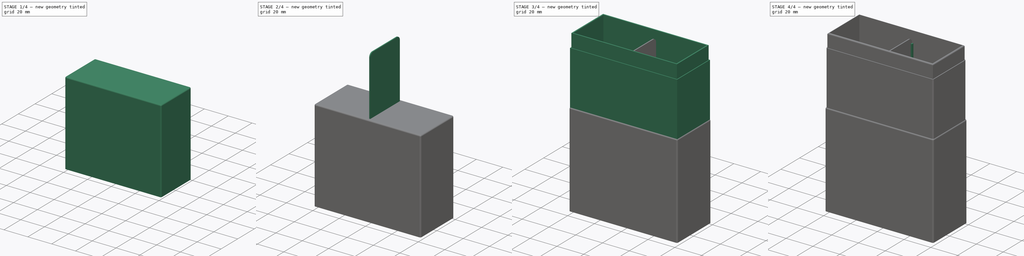
[diagram: build sequence overview — one tinted view per stage of 4, left to right]
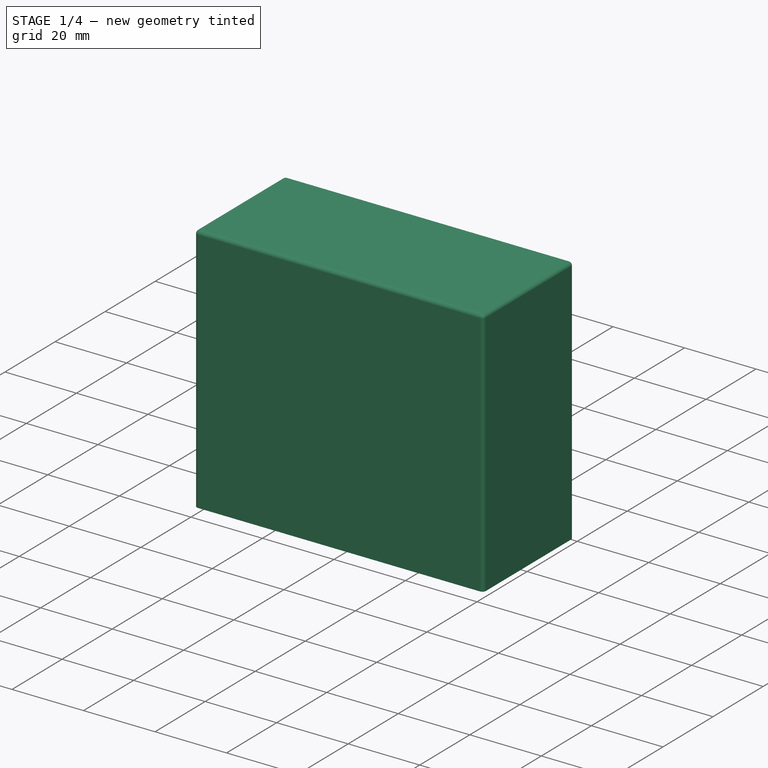
[diagram: stage 1 of 4 — iso view after this stage's code; geometry added in this stage tinted green]
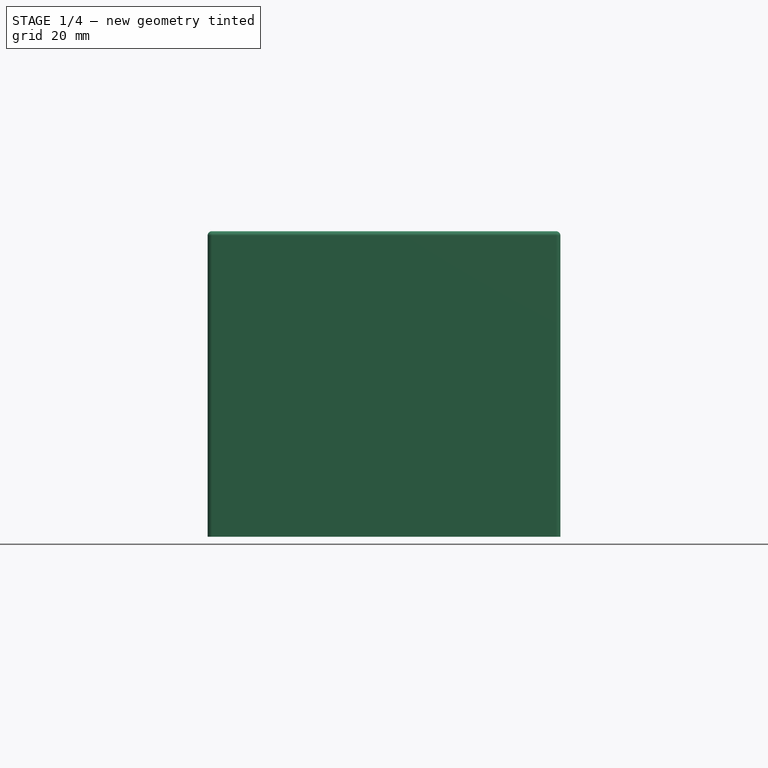
[diagram: stage 1 of 4 — front view after this stage's code; geometry added in this stage tinted green]
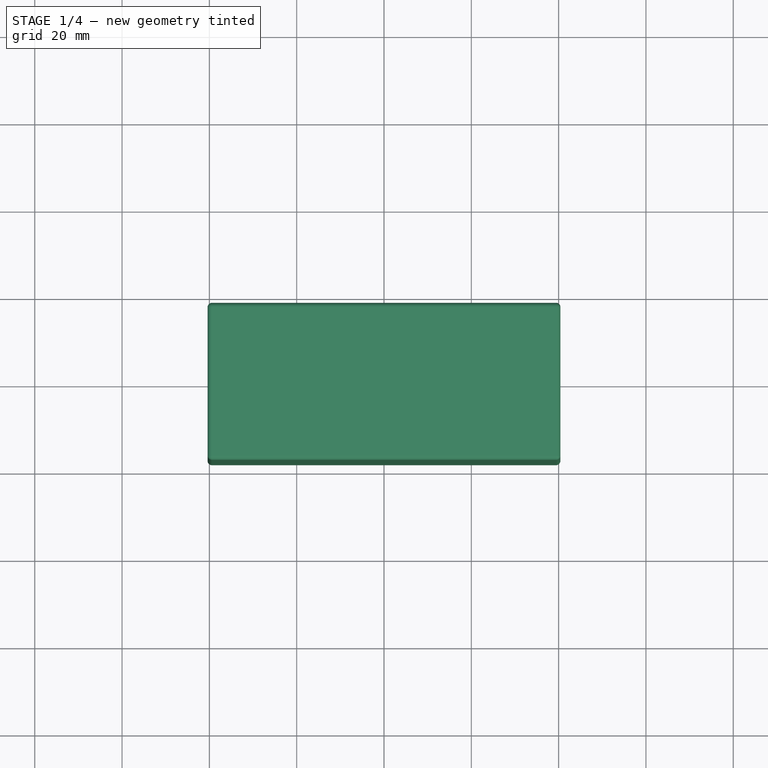
[diagram: stage 1 of 4 — top view after this stage's code; geometry added in this stage tinted green]
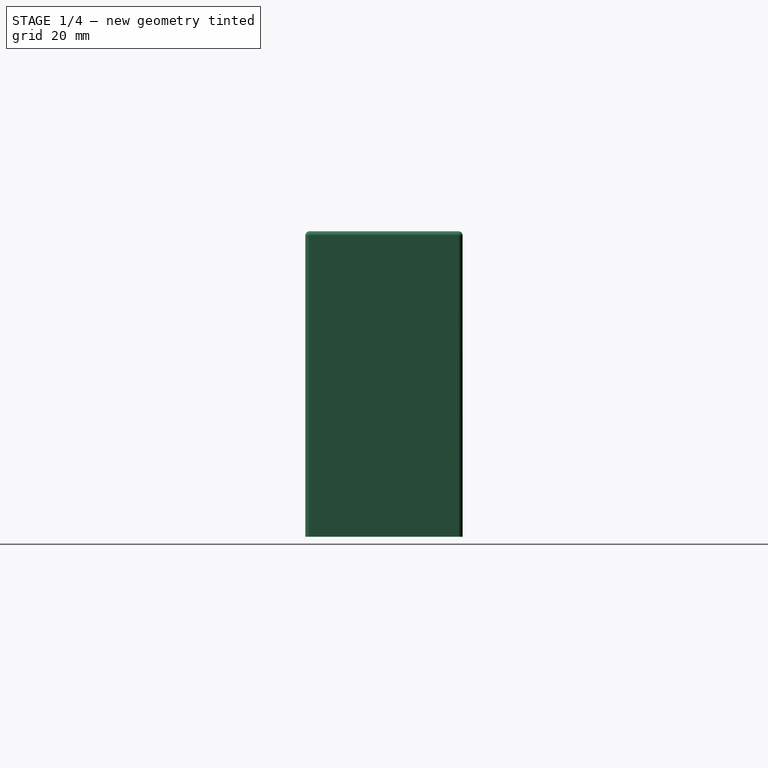
[diagram: stage 1 of 4 — right view after this stage's code; geometry added in this stage tinted green]
FCSTD DOCUMENT  (FreeCAD 0.20R29177 +426 (Git))
Label: 壁挂盒-笔筒
License: All rights reserved
LicenseURL: http://en.wikipedia.org/wiki/All_rights_reserved
objects: Sketcher::SketchObject×5, PartDesign::Fillet×5, PartDesign::Pad×4, PartDesign::Body×3, App::Part×3, PartDesign::Thickness×2, PartDesign::Pocket×1
note: 32 computed .brp shape members not serialized (recipe doc carries the construction recipe); baked Part::Feature solids carry a one-line shape summary decoded from their .brp

FEATURE [Sketcher::SketchObject] Sketch002
  FullyConstrained = true
  MapMode = 5
  Support = -> [XY_Plane003]
  sketch-geometry (8):
    g0: LineSegment StartX=-40.4 StartY=18 StartZ=0 EndX=40.4 EndY=18 EndZ=0
    g1: LineSegment StartX=40.4 StartY=18 StartZ=0 EndX=40.4 EndY=-18 EndZ=0
    g2: LineSegment StartX=40.4 StartY=-18 StartZ=0 EndX=-40.4 EndY=-18 EndZ=0
    g3: LineSegment StartX=-40.4 StartY=-18 StartZ=0 EndX=-40.4 EndY=18 EndZ=0
    g4: LineSegment StartX=-39.6 StartY=17.1 StartZ=0 EndX=39.6 EndY=17.1 EndZ=0
    g5: LineSegment StartX=39.6 StartY=17.1 StartZ=0 EndX=39.6 EndY=-17.1 EndZ=0
    g6: LineSegment StartX=39.6 StartY=-17.1 StartZ=0 EndX=-39.6 EndY=-17.1 EndZ=0
    g7: LineSegment StartX=-39.6 StartY=-17.1 StartZ=0 EndX=-39.6 EndY=17.1 EndZ=0
  constraints (23):
    c: Coincident(g0,g1)
    c: Coincident(g1,g2)
    c: Coincident(g2,g3)
    c: Coincident(g3,g0)
    c: Horizontal(g0)
    c: Horizontal(g2)
    c: Vertical(g1)
    c: Vertical(g3)
    c: Symmetric(g2,g0,g-1)
    c: DistanceX(g2,g2) = 80.8
    c: DistanceY(g3,g3) = 36
    c: Coincident(g4,g5)
    c: Coincident(g5,g6)
    c: Coincident(g6,g7)
    c: Coincident(g7,g4)
    c: Horizontal(g4)
    c: Horizontal(g6)
    c: Vertical(g5)
    c: Vertical(g7)
    c: Distance(g6,g2) = 0.9
    c: Distance(g4,g3) = 0.8
    c: Distance(g4,g1) = 0.8
    c: Distance(g4,g0) = 0.9
FEATURE [PartDesign::Pad] Pad001
  Direction = (0,0,1)
  Length = 70
  Length2 = 10
  Profile = -> Sketch002
  ReferenceAxis = -> Sketch002 [N_Axis]
  Type = 0
FEATURE [PartDesign::Thickness] Thickness001
  Base = -> Pad001 [Face5]
  BaseFeature = -> Pad001
  Intersection = false
  Join = 1
  Mode = 0
  Reversed = true
  SupportTransform = false
  Value = 0.8
FEATURE [PartDesign::Body] Body002
  Group = -> [Sketch004,Pad003,Fillet004]
  Origin = -> Origin005
  Tip = -> Fillet004
FEATURE [App::Part] Part002  label="隔板"
  Group = -> [Body002]
  Origin = -> Origin004
  Placement = pos=(123,0,0) rot=(0,0,1;0rad)
FEATURE [PartDesign::Fillet] Fillet
  Base = -> Thickness001 [Edge1,Edge8,Edge2,Edge4,Edge5,Edge7,Edge10,Edge12]
  BaseFeature = -> Thickness001
  Radius = 1
  SupportTransform = false
  UseAllEdges = false
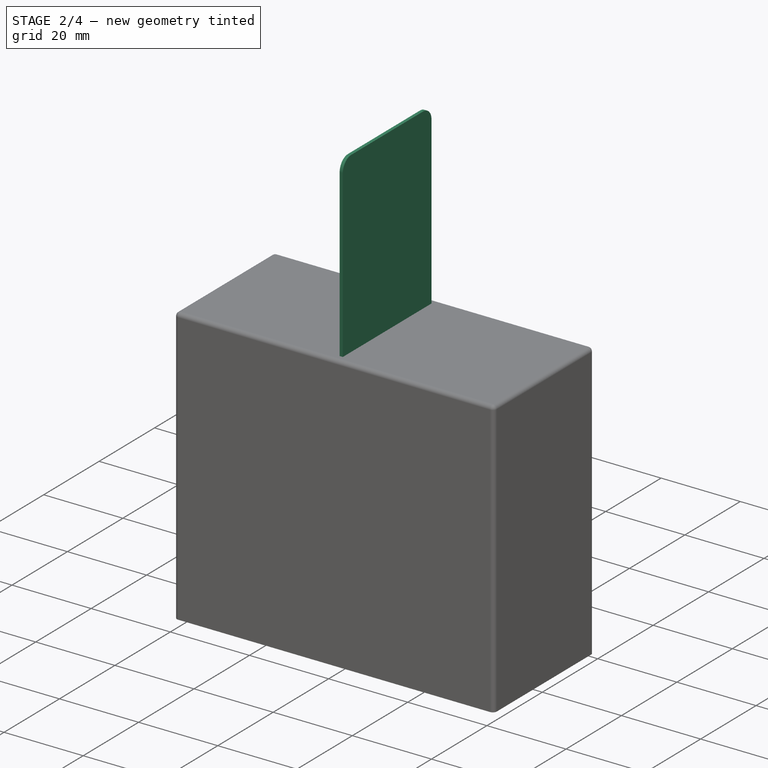
[diagram: stage 2 of 4 — iso view after this stage's code; geometry added in this stage tinted green]
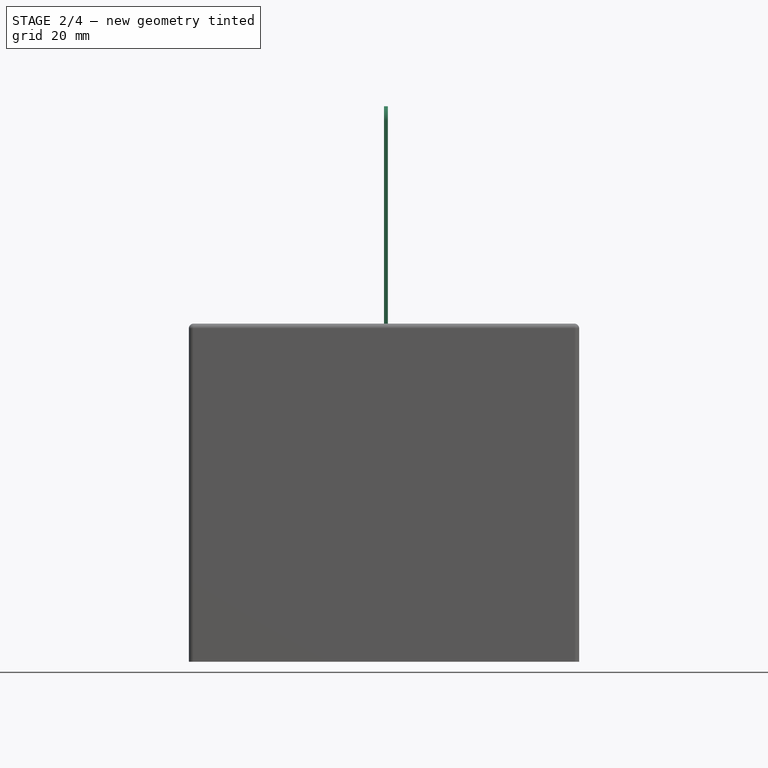
[diagram: stage 2 of 4 — front view after this stage's code; geometry added in this stage tinted green]
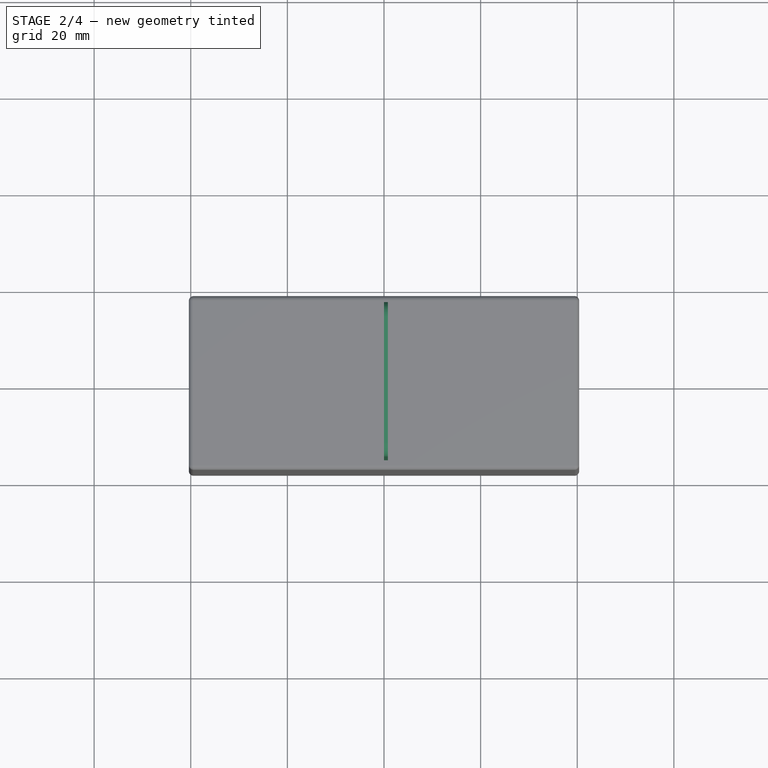
[diagram: stage 2 of 4 — top view after this stage's code; geometry added in this stage tinted green]
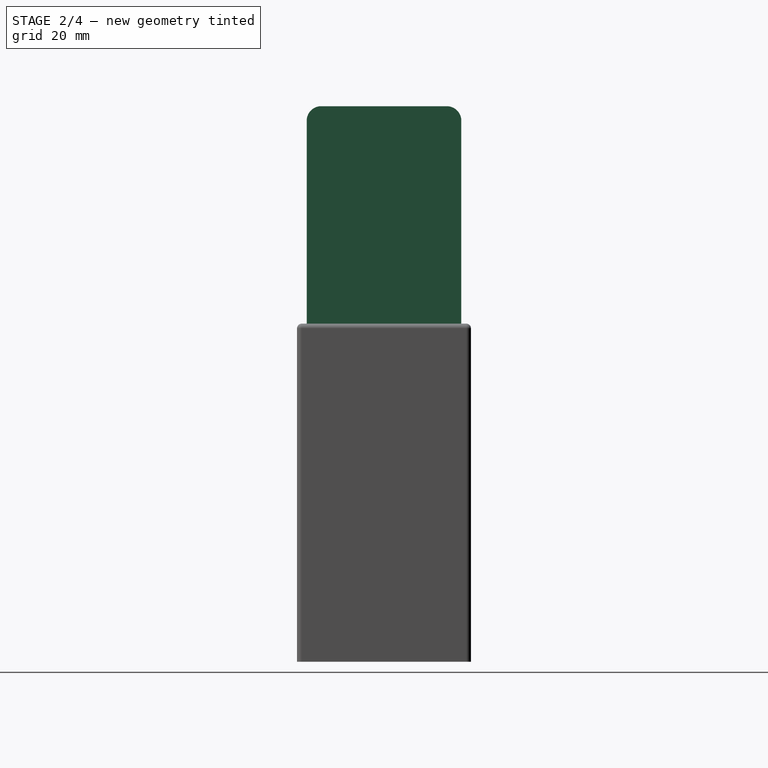
[diagram: stage 2 of 4 — right view after this stage's code; geometry added in this stage tinted green]
FEATURE [PartDesign::Body] Body
  Group = -> [Sketch,Pad,Thickness,Sketch001,Pocket,Fillet001,Sketch003,Pad002,Fillet002]
  Origin = -> Origin
  Tip = -> Fillet002
FEATURE [App::Part] Part  label="盒体"
  Group = -> [Body]
  Origin = -> Origin001
FEATURE [Sketcher::SketchObject] Sketch004
  FullyConstrained = true
  MapMode = 5
  Placement = pos=(0,0,0) rot=(0.57735,0.57735,0.57735;2.0944rad)
  Support = -> [YZ_Plane005]
  sketch-geometry (4):
    g0: LineSegment StartX=-16 StartY=115 StartZ=0 EndX=16 EndY=115 EndZ=0
    g1: LineSegment StartX=16 StartY=115 StartZ=0 EndX=16 EndY=0 EndZ=0
    g2: LineSegment StartX=16 StartY=0 StartZ=0 EndX=-16 EndY=0 EndZ=0
    g3: LineSegment StartX=-16 StartY=0 StartZ=0 EndX=-16 EndY=115 EndZ=0
  constraints (12):
    c: Coincident(g0,g1)
    c: Coincident(g1,g2)
    c: Coincident(g2,g3)
    c: Coincident(g3,g0)
    c: Horizontal(g0)
    c: Horizontal(g2)
    c: Vertical(g1)
    c: Vertical(g3)
    c: DistanceY(g1,g1) = 115
    c: PointOnObject(g1,g-1)
    c: DistanceX(g-2,g1) = 16
    c: DistanceX(g-2,g2) = -16
FEATURE [PartDesign::Pad] Pad003
  Direction = (1,-2e-16,3e-16)
  Length = 0.8
  Length2 = 10
  Placement = pos=(0,0,0) rot=(0.57735,0.57735,0.57735;2.0944rad)
  Profile = -> Sketch004
  ReferenceAxis = -> Sketch004 [N_Axis]
  Type = 0
FEATURE [PartDesign::Fillet] Fillet004
  Base = -> Pad003 [Edge2,Edge1,Edge5,Edge8]
  BaseFeature = -> Pad003
  Placement = pos=(0,0,0) rot=(0.57735,0.57735,0.57735;2.0944rad)
  Radius = 3
  SupportTransform = false
  UseAllEdges = false
FEATURE [PartDesign::Fillet] Fillet005
  Base = -> Fillet [Edge12,Edge13,Edge15,Edge14]
  BaseFeature = -> Fillet
  Radius = 0.5
  SupportTransform = false
  UseAllEdges = false
FEATURE [PartDesign::Body] Body001
  Group = -> [Sketch002,Pad001,Thickness001,Fillet,Fillet005]
  Origin = -> Origin003
  Placement = pos=(0,0,127) rot=(0,0,1;0rad)
  Tip = -> Fillet005
FEATURE [App::Part] Part001  label="盒盖"
  Group = -> [Body001]
  Origin = -> Origin002
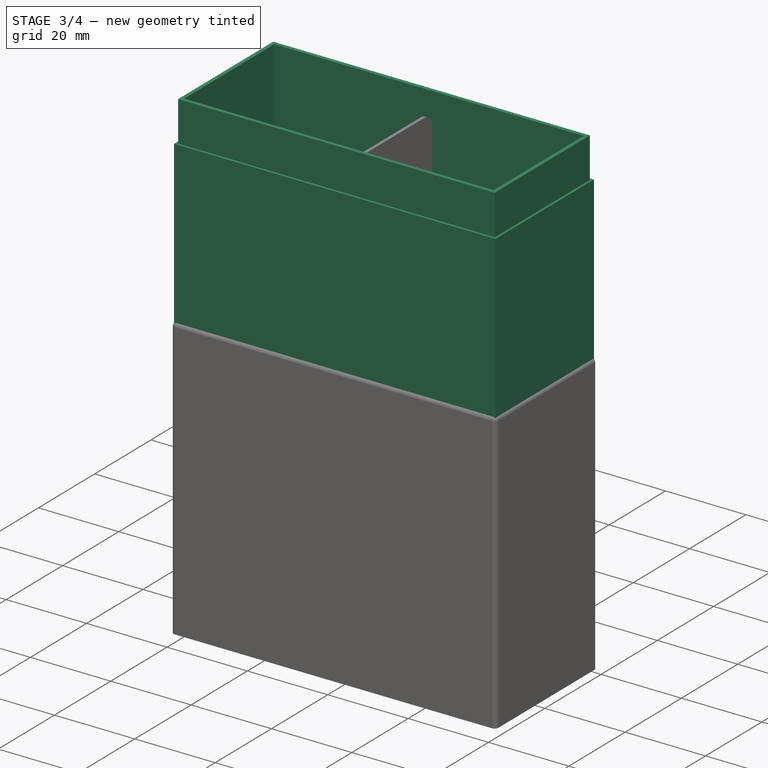
[diagram: stage 3 of 4 — iso view after this stage's code; geometry added in this stage tinted green]
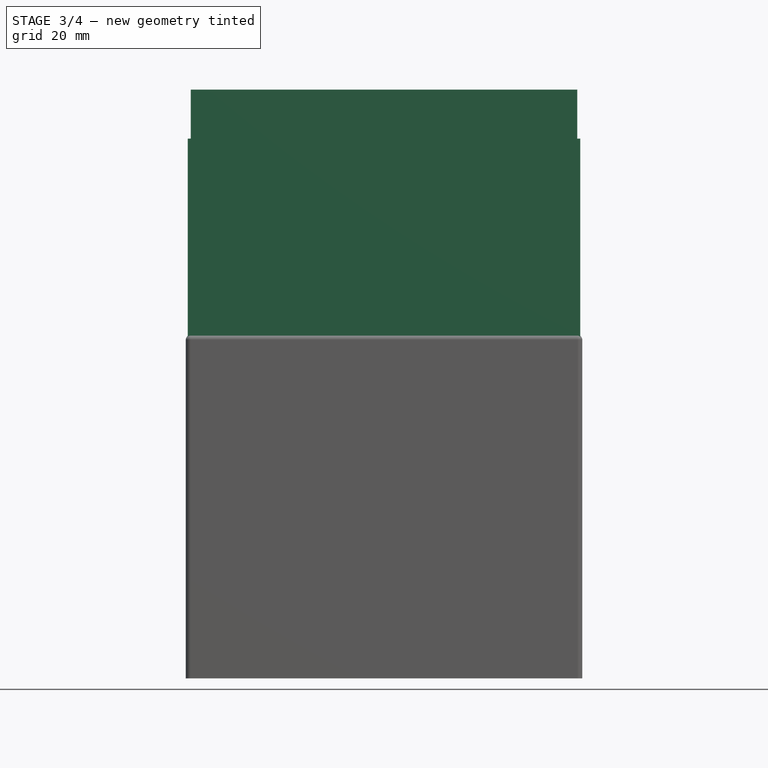
[diagram: stage 3 of 4 — front view after this stage's code; geometry added in this stage tinted green]
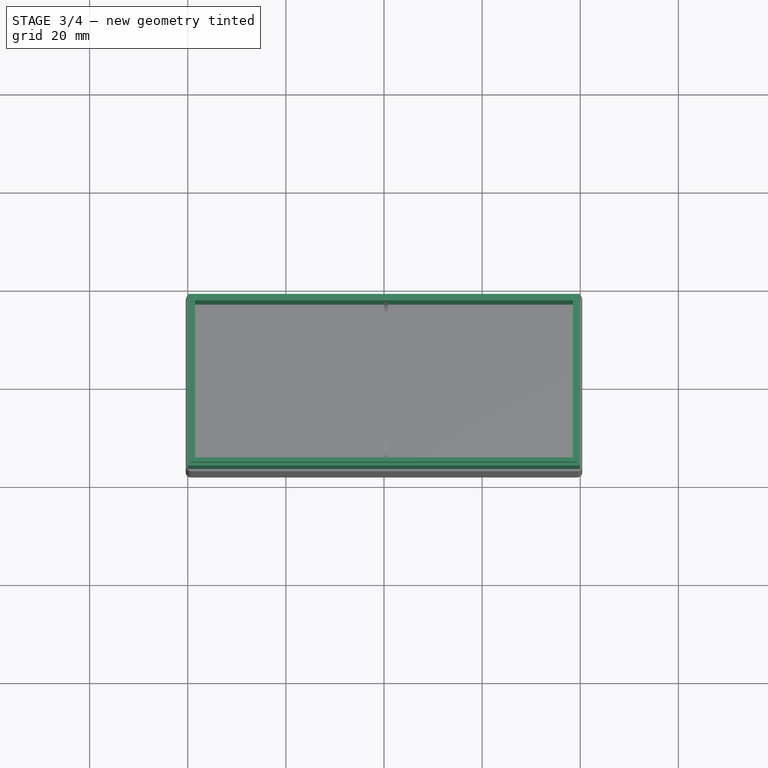
[diagram: stage 3 of 4 — top view after this stage's code; geometry added in this stage tinted green]
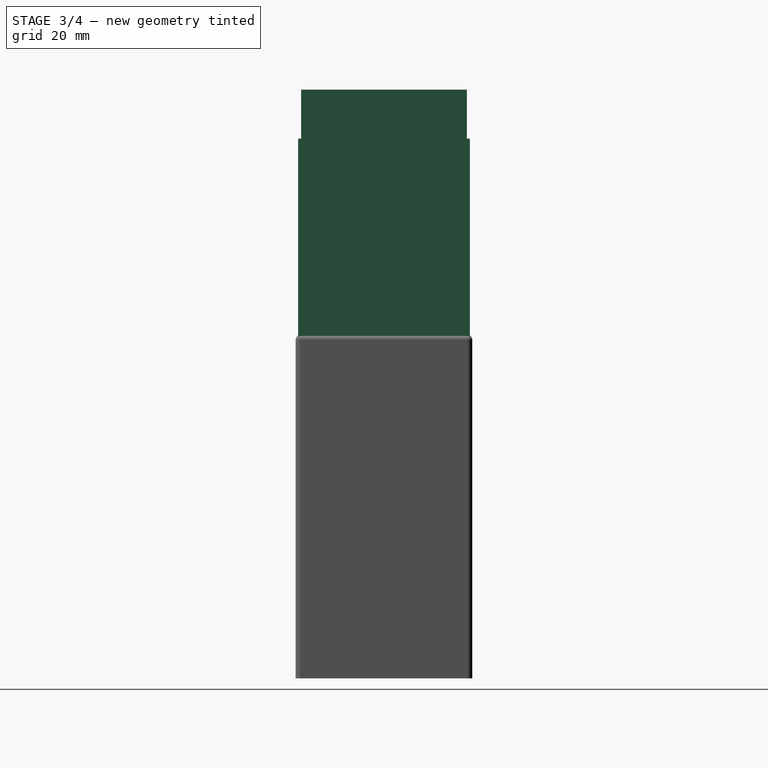
[diagram: stage 3 of 4 — right view after this stage's code; geometry added in this stage tinted green]
FEATURE [Sketcher::SketchObject] Sketch
  FullyConstrained = true
  MapMode = 5
  Support = -> [XY_Plane]
  sketch-geometry (4):
    g0: LineSegment StartX=-40 StartY=17.5 StartZ=0 EndX=40 EndY=17.5 EndZ=0
    g1: LineSegment StartX=40 StartY=17.5 StartZ=0 EndX=40 EndY=-17.5 EndZ=0
    g2: LineSegment StartX=40 StartY=-17.5 StartZ=0 EndX=-40 EndY=-17.5 EndZ=0
    g3: LineSegment StartX=-40 StartY=-17.5 StartZ=0 EndX=-40 EndY=17.5 EndZ=0
  constraints (11):
    c: Coincident(g0,g1)
    c: Coincident(g1,g2)
    c: Coincident(g2,g3)
    c: Coincident(g3,g0)
    c: Horizontal(g0)
    c: Horizontal(g2)
    c: Vertical(g1)
    c: Vertical(g3)
    c: Symmetric(g2,g0,g-1)
    c: DistanceX(g2,g2) = 80
    c: DistanceY(g3,g3) = 35
FEATURE [PartDesign::Pad] Pad
  Direction = (0,0,1)
  Length = 120
  Length2 = 10
  Profile = -> Sketch
  ReferenceAxis = -> Sketch [N_Axis]
  Type = 0
FEATURE [PartDesign::Thickness] Thickness
  Base = -> Pad [Face6]
  BaseFeature = -> Pad
  Intersection = false
  Join = 0
  Mode = 0
  Reversed = true
  SupportTransform = false
  Value = 1.5
FEATURE [Sketcher::SketchObject] Sketch001
  ExternalGeometry = -> [Thickness]
  FullyConstrained = true
  MapMode = 5
  Placement = pos=(0,0,120) rot=(0,0,1;0rad)
  Support = -> [Thickness]
  sketch-geometry (8):
    g0: LineSegment StartX=-39.4 StartY=16.9 StartZ=0 EndX=39.4 EndY=16.9 EndZ=0
    g1: LineSegment StartX=39.4 StartY=16.9 StartZ=0 EndX=39.4 EndY=-16.9 EndZ=0
    g2: LineSegment StartX=39.4 StartY=-16.9 StartZ=0 EndX=-39.4 EndY=-16.9 EndZ=0
    g3: LineSegment StartX=-39.4 StartY=-16.9 StartZ=0 EndX=-39.4 EndY=16.9 EndZ=0
    g4: LineSegment StartX=-40 StartY=17.5 StartZ=0 EndX=40 EndY=17.5 EndZ=0
    g5: LineSegment StartX=40 StartY=17.5 StartZ=0 EndX=40 EndY=-17.5 EndZ=0
    g6: LineSegment StartX=40 StartY=-17.5 StartZ=0 EndX=-40 EndY=-17.5 EndZ=0
    g7: LineSegment StartX=-40 StartY=-17.5 StartZ=0 EndX=-40 EndY=17.5 EndZ=0
  constraints (21):
    c: Coincident(g0,g1)
    c: Coincident(g1,g2)
    c: Coincident(g2,g3)
    c: Coincident(g3,g0)
    c: Horizontal(g0)
    c: Horizontal(g2)
    c: Vertical(g1)
    c: Vertical(g3)
    c: Symmetric(g0,g2,g-1)
    c: Distance(g2,g-6) = 0.6
    c: Distance(g2,g-4) = 0.6
    c: Coincident(g4,g5)
    c: Coincident(g5,g6)
    c: Coincident(g6,g7)
    c: Coincident(g7,g4)
    c: Horizontal(g4)
    c: Horizontal(g6)
    c: Vertical(g5)
    c: Vertical(g7)
    c: Coincident(g4,g-4)
    c: Coincident(g5,g-6)
FEATURE [PartDesign::Pocket] Pocket
  BaseFeature = -> Thickness
  Direction = (0,0,-1)
  Length = 10
  Length2 = 5
  Profile = -> Sketch001
  ReferenceAxis = -> Sketch001 [N_Axis]
  Type = 0
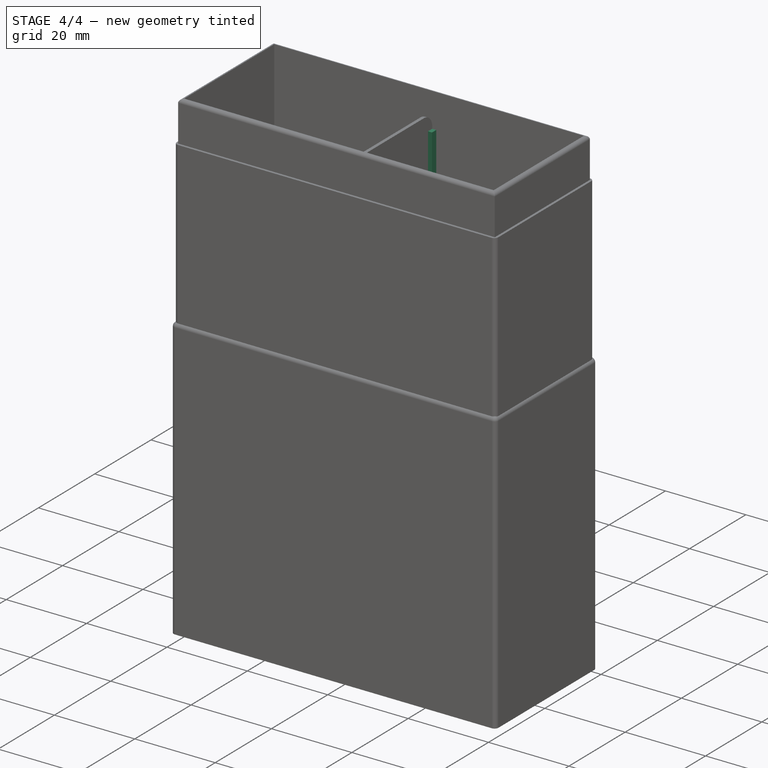
[diagram: stage 4 of 4 — iso view after this stage's code; geometry added in this stage tinted green]
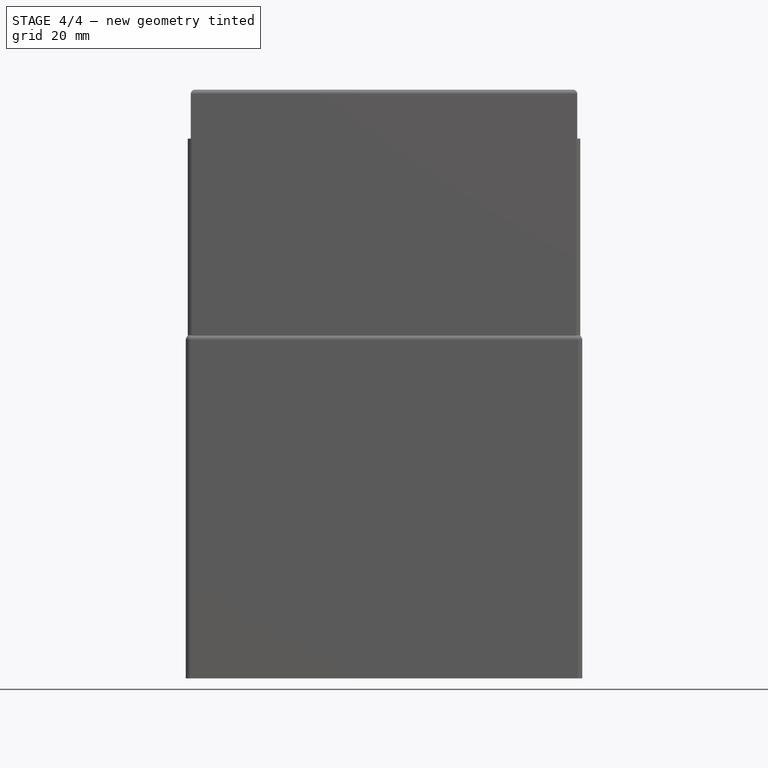
[diagram: stage 4 of 4 — front view after this stage's code; geometry added in this stage tinted green]
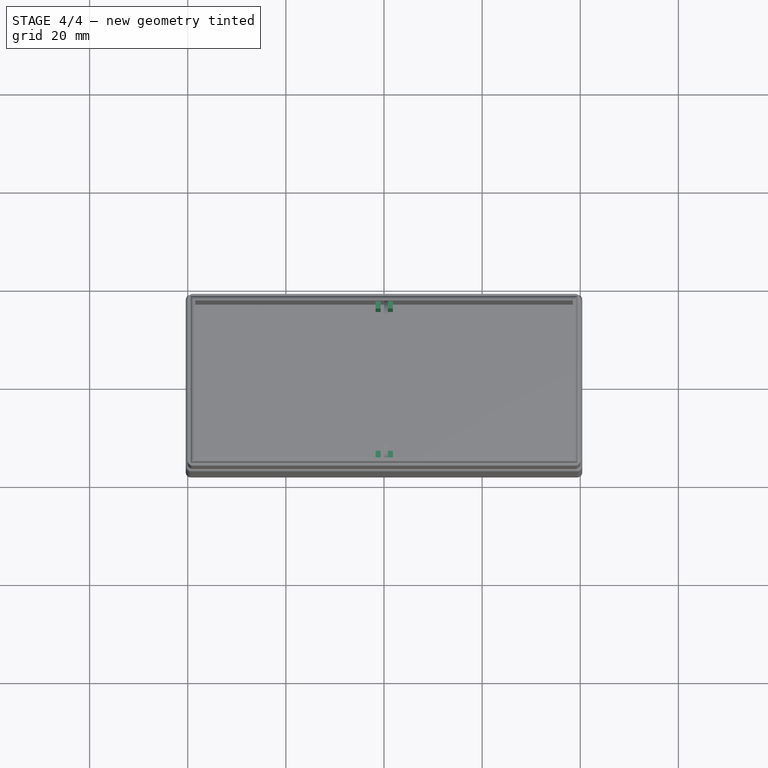
[diagram: stage 4 of 4 — top view after this stage's code; geometry added in this stage tinted green]
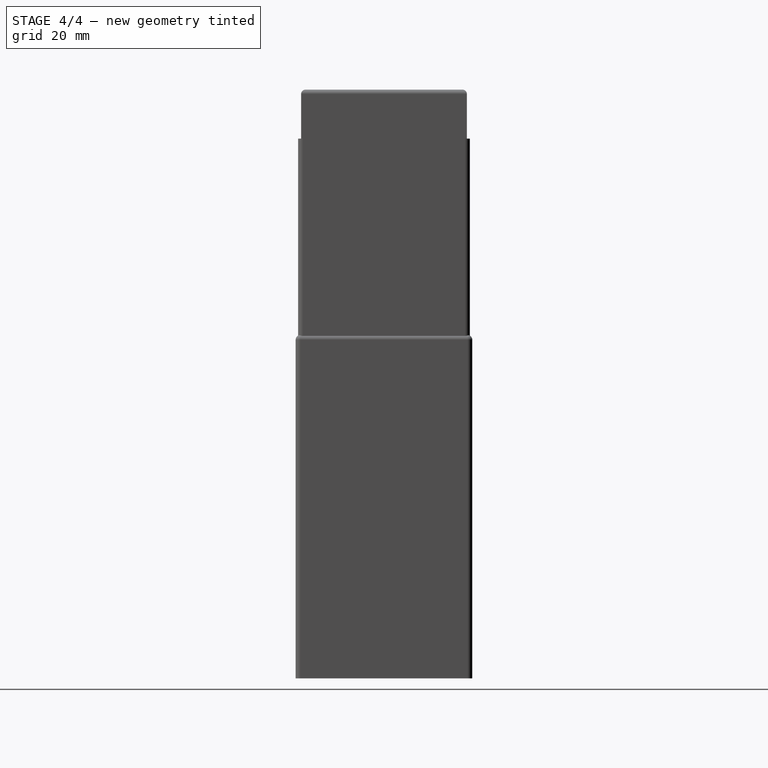
[diagram: stage 4 of 4 — right view after this stage's code; geometry added in this stage tinted green]
FEATURE [PartDesign::Fillet] Fillet001
  Base = -> Pocket [Edge8,Edge2,Edge16,Edge4,Edge7,Edge6,Edge1,Edge5]
  BaseFeature = -> Pocket
  Radius = 1
  SupportTransform = false
  UseAllEdges = false
FEATURE [Sketcher::SketchObject] Sketch003
  ExternalGeometry = -> [Fillet001]
  FullyConstrained = true
  MapMode = 5
  Placement = pos=(0,0,1.5) rot=(0,0,1;0rad)
  Support = -> [Fillet001]
  sketch-geometry (16):
    g0: LineSegment StartX=0.8 StartY=16 StartZ=0 EndX=1.8 EndY=16 EndZ=0
    g1: LineSegment StartX=1.8 StartY=16 StartZ=0 EndX=1.8 EndY=14.5 EndZ=0
    g2: LineSegment StartX=1.8 StartY=14.5 StartZ=0 EndX=0.8 EndY=14.5 EndZ=0
    g3: LineSegment StartX=0.8 StartY=14.5 StartZ=0 EndX=0.8 EndY=16 EndZ=0
    g4: LineSegment StartX=-1.7 StartY=-14.5 StartZ=0 EndX=-0.7 EndY=-14.5 EndZ=0
    g5: LineSegment StartX=-0.7 StartY=-14.5 StartZ=0 EndX=-0.7 EndY=-16 EndZ=0
    g6: LineSegment StartX=-0.7 StartY=-16 StartZ=0 EndX=-1.7 EndY=-16 EndZ=0
    g7: LineSegment StartX=-1.7 StartY=-16 StartZ=0 EndX=-1.7 EndY=-14.5 EndZ=0
    g8: LineSegment StartX=0.8 StartY=-14.5 StartZ=0 EndX=1.8 EndY=-14.5 EndZ=0
    g9: LineSegment StartX=1.8 StartY=-14.5 StartZ=0 EndX=1.8 EndY=-16 EndZ=0
    g10: LineSegment StartX=1.8 StartY=-16 StartZ=0 EndX=0.8 EndY=-16 EndZ=0
    g11: LineSegment StartX=0.8 StartY=-16 StartZ=0 EndX=0.8 EndY=-14.5 EndZ=0
    g12: LineSegment StartX=-1.7 StartY=16 StartZ=0 EndX=-0.7 EndY=16 EndZ=0
    g13: LineSegment StartX=-0.7 StartY=16 StartZ=0 EndX=-0.7 EndY=14.5 EndZ=0
    g14: LineSegment StartX=-0.7 StartY=14.5 StartZ=0 EndX=-1.7 EndY=14.5 EndZ=0
    g15: LineSegment StartX=-1.7 StartY=14.5 StartZ=0 EndX=-1.7 EndY=16 EndZ=0
  constraints (48):
    c: Coincident(g0,g1)
    c: Coincident(g1,g2)
    c: Coincident(g2,g3)
    c: Coincident(g3,g0)
    c: Horizontal(g0)
    c: Horizontal(g2)
    c: Vertical(g1)
    c: Vertical(g3)
    c: Coincident(g4,g5)
    c: Coincident(g5,g6)
    c: Coincident(g6,g7)
    c: Coincident(g7,g4)
    c: Horizontal(g4)
    c: Horizontal(g6)
    c: Vertical(g5)
    c: Vertical(g7)
    c: Coincident(g8,g9)
    c: Coincident(g9,g10)
    c: Coincident(g10,g11)
    c: Coincident(g11,g8)
    c: Horizontal(g8)
    c: Horizontal(g10)
    c: Vertical(g9)
    c: Vertical(g11)
    c: Coincident(g12,g13)
    c: Coincident(g13,g14)
    c: Coincident(g14,g15)
    c: Coincident(g15,g12)
    c: Horizontal(g12)
    c: Horizontal(g14)
    c: Vertical(g13)
    c: Vertical(g15)
    c: Equal(g14,g2)
    c: Equal(g2,g4)
    c: Equal(g4,g8)
    c: Equal(g7,g11)
    c: Equal(g11,g3)
    c: Equal(g3,g15)
    c: PointOnObject(g12,g-3)
    c: PointOnObject(g0,g-3)
    c: PointOnObject(g5,g-5)
    c: PointOnObject(g10,g-5)
    c: Distance(g13,g2) = 1.5
    c: Vertical(g13,g4)
    c: Vertical(g8,g2)
    c: DistanceX(g-2,g4) = -0.7
    c: DistanceY(g7,g7) = 1.5
    c: DistanceX(g4,g4) = 1
FEATURE [PartDesign::Pad] Pad002
  BaseFeature = -> Fillet001
  Direction = (0,0,1)
  Length = 110
  Length2 = 10
  Profile = -> Sketch003
  ReferenceAxis = -> Sketch003 [N_Axis]
  Type = 0
FEATURE [PartDesign::Fillet] Fillet002
  Base = -> Pad002 [Edge38,Edge36,Edge34,Edge39]
  BaseFeature = -> Pad002
  Radius = 0.89
  SupportTransform = false
  UseAllEdges = false
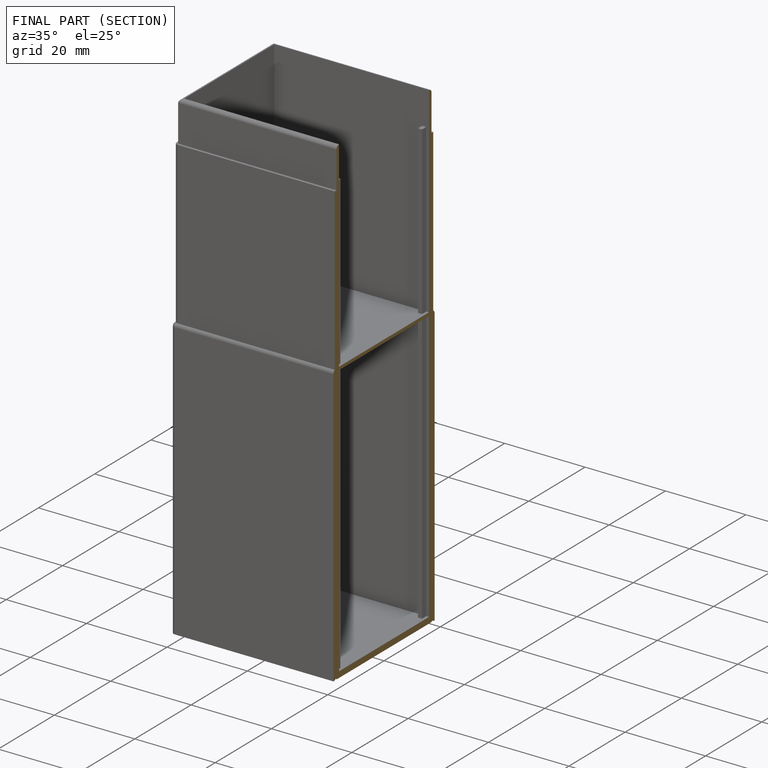
[diagram: finished part — half-section view (interior)]
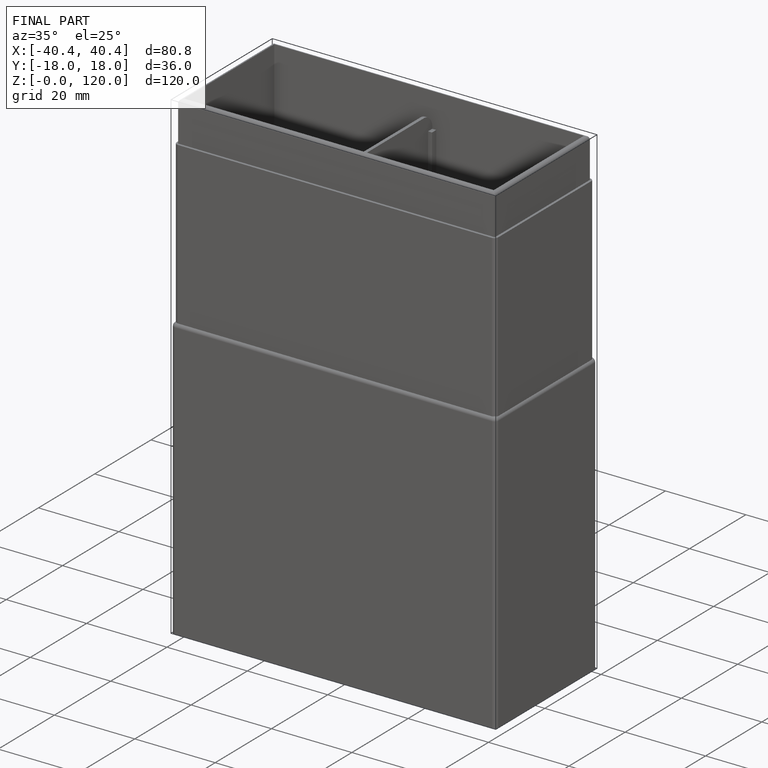
[diagram: finished part — iso view with bounding-box wireframe]
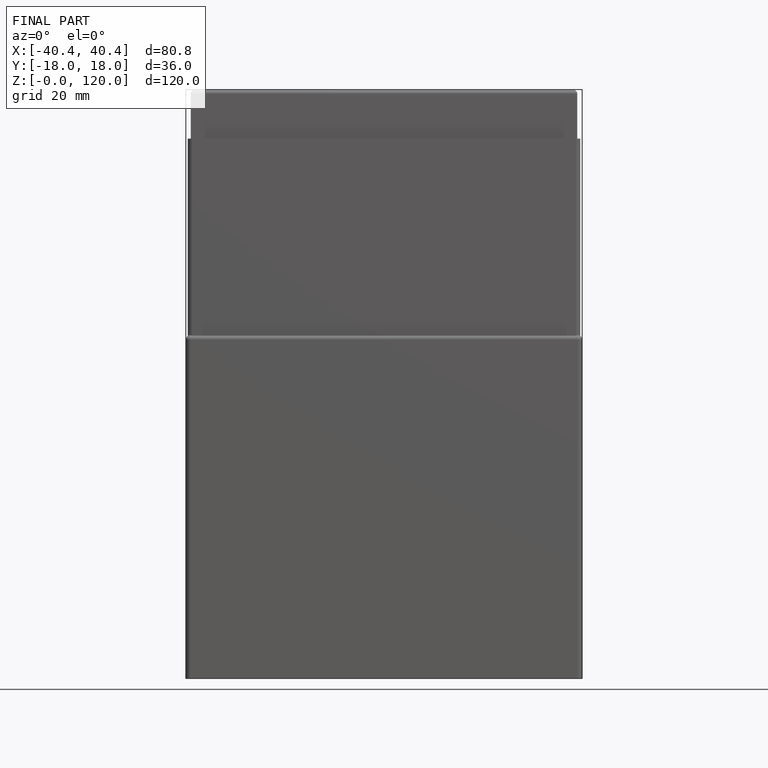
[diagram: finished part — front view with bounding-box wireframe]
